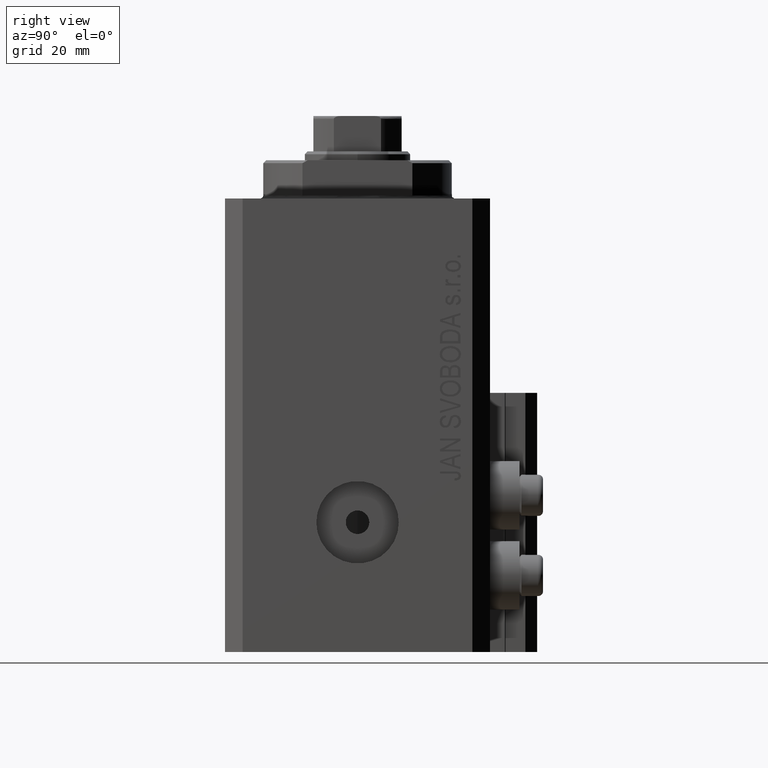
[diagram: clean part render]
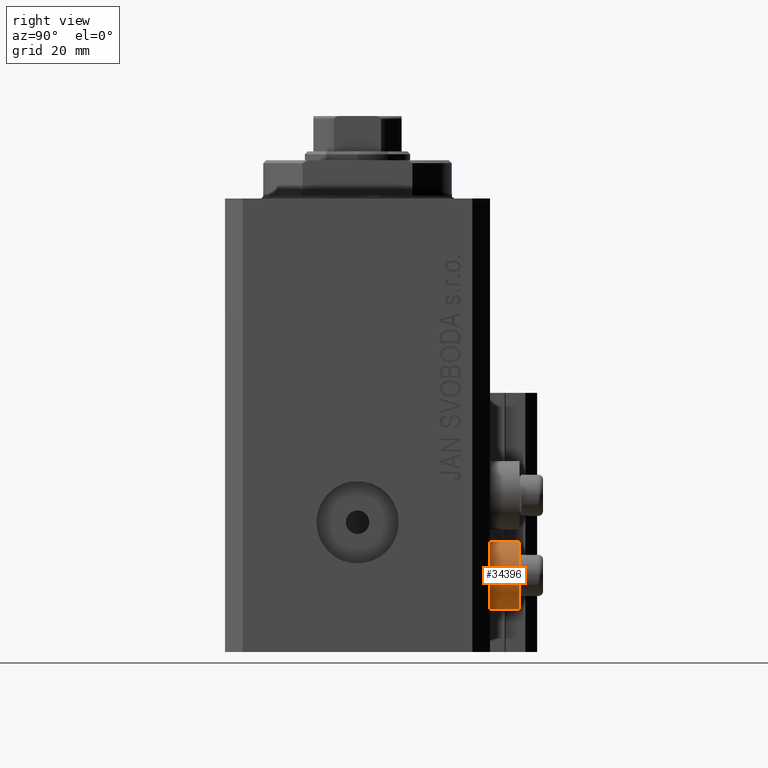
[diagram: same view with one face highlighted and labeled with its STEP entity id]
A machine part, right view. The second image highlights one B-rep face of the part: STEP entity #34396.
In plain terms, the highlighted cylindrical surface (edge-blend (fillet) strip) has radius 5.8 mm, axis along (0, 1, 0).
Its self-contained STEP definition (entity closure, byte-faithful):
#1118 = DIRECTION ( 'NONE',  ( 0.000000000000000000, 1.000000000000000000, 0.000000000000000000 ) ) ;
#1325 = CARTESIAN_POINT ( 'NONE',  ( 18.00000000000000355, 22.49999999999951328, -69.79999999999999716 ) ) ;
#1450 = CIRCLE ( 'NONE', #9063, 5.799999999999999822 ) ;
#3100 = CARTESIAN_POINT ( 'NONE',  ( 18.00000000000000355, 27.49999999996051514, -69.79999999999999716 ) ) ;
#3403 = DIRECTION ( 'NONE',  ( 0.000000000000000000, 0.000000000000000000, -1.000000000000000000 ) ) ;
#3885 = DIRECTION ( 'NONE',  ( 0.000000000000000000, 1.000000000000000000, 0.000000000000000000 ) ) ;
#4467 = EDGE_CURVE ( 'NONE', #30446, #36436, #23152, .T. ) ;
#5280 = ORIENTED_EDGE ( 'NONE', *, *, #6616, .F. ) ;
#5510 = AXIS2_PLACEMENT_3D ( 'NONE', #7260, #17810, #28828 ) ;
#6616 = EDGE_CURVE ( 'NONE', #17139, #15833, #11178, .T. ) ;
#7260 = CARTESIAN_POINT ( 'NONE',  ( 18.00000000000000355, 22.49999999999951328, -64.00000000000000000 ) ) ;
#9008 = ORIENTED_EDGE ( 'NONE', *, *, #19813, .T. ) ;
#9063 = AXIS2_PLACEMENT_3D ( 'NONE', #10496, #10738, #35959 ) ;
#9103 = VECTOR ( 'NONE', #1118, 1000.000000000000000 ) ;
#9316 = CIRCLE ( 'NONE', #5510, 5.799999999999999822 ) ;
#10496 = CARTESIAN_POINT ( 'NONE',  ( 18.00000000000000355, 27.49999999996051514, -64.00000000000000000 ) ) ;
#10738 = DIRECTION ( 'NONE',  ( 0.000000000000000000, 1.000000000000000000, 0.000000000000000000 ) ) ;
#11178 = LINE ( 'NONE', #19108, #9103 ) ;
#12125 = VECTOR ( 'NONE', #46131, 1000.000000000000000 ) ;
#12682 = CARTESIAN_POINT ( 'NONE',  ( 18.00000000000000355, 22.49999999999951328, -58.20000000000000284 ) ) ;
#12990 = ORIENTED_EDGE ( 'NONE', *, *, #39422, .F. ) ;
#15713 = CARTESIAN_POINT ( 'NONE',  ( 18.00000000000000355, 27.49999999996051514, -69.79999999999999716 ) ) ;
#15833 = VERTEX_POINT ( 'NONE', #22921 ) ;
#17139 = VERTEX_POINT ( 'NONE', #12682 ) ;
#17810 = DIRECTION ( 'NONE',  ( 0.000000000000000000, 1.000000000000000000, 0.000000000000000000 ) ) ;
#19108 = CARTESIAN_POINT ( 'NONE',  ( 18.00000000000000355, 27.49999999996051514, -58.20000000000000284 ) ) ;
#19648 = AXIS2_PLACEMENT_3D ( 'NONE', #36745, #3885, #3403 ) ;
#19813 = EDGE_CURVE ( 'NONE', #17139, #30446, #9316, .T. ) ;
#22921 = CARTESIAN_POINT ( 'NONE',  ( 18.00000000000000355, 27.49999999996051514, -58.20000000000000284 ) ) ;
#23152 = LINE ( 'NONE', #15713, #12125 ) ;
#25218 = CYLINDRICAL_SURFACE ( 'NONE', #19648, 5.799999999999999822 ) ;
#28828 = DIRECTION ( 'NONE',  ( 0.000000000000000000, 0.000000000000000000, -1.000000000000000000 ) ) ;
#30446 = VERTEX_POINT ( 'NONE', #1325 ) ;
#34396 = ADVANCED_FACE ( 'NONE', ( #43715 ), #25218, .T. ) ;
#35959 = DIRECTION ( 'NONE',  ( 0.000000000000000000, 0.000000000000000000, -1.000000000000000000 ) ) ;
#36436 = VERTEX_POINT ( 'NONE', #3100 ) ;
#36745 = CARTESIAN_POINT ( 'NONE',  ( 18.00000000000000355, 27.49999999996051514, -64.00000000000000000 ) ) ;
#39422 = EDGE_CURVE ( 'NONE', #15833, #36436, #1450, .T. ) ;
#42807 = EDGE_LOOP ( 'NONE', ( #5280, #9008, #46798, #12990 ) ) ;
#43715 = FACE_OUTER_BOUND ( 'NONE', #42807, .T. ) ;
#46131 = DIRECTION ( 'NONE',  ( 0.000000000000000000, 1.000000000000000000, 0.000000000000000000 ) ) ;
#46798 = ORIENTED_EDGE ( 'NONE', *, *, #4467, .T. ) ;